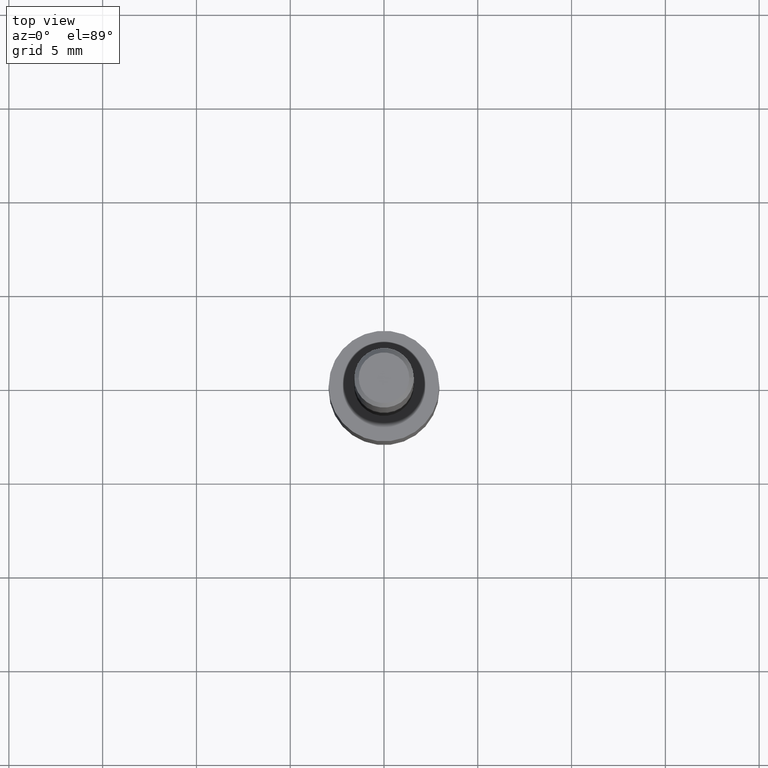
[diagram: clean part render]
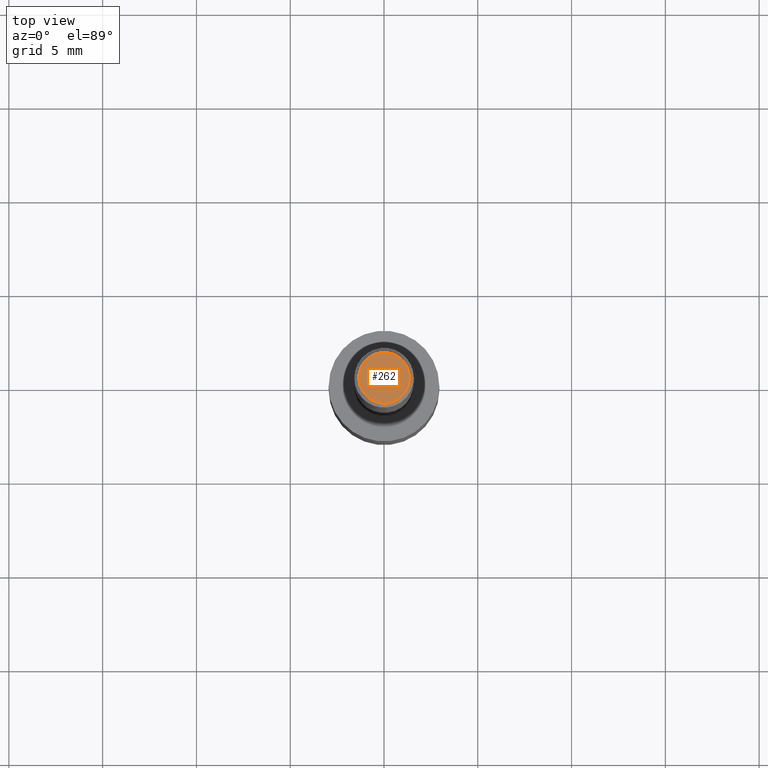
[diagram: same view with one face highlighted and labeled with its STEP entity id]
A machine part, top view. The second image highlights one B-rep face of the part: STEP entity #262.
In plain terms, the highlighted planar face has unit normal (0, -0, -1).
Its self-contained STEP definition (entity closure, byte-faithful):
#17 = ORIENTED_EDGE ( 'NONE', *, *, #114, .T. ) ;
#73 = CARTESIAN_POINT ( 'NONE',  ( -3.743544432386672853E-50, 5.344789307371238476E-36, 1.530808498934197599E-21 ) ) ;
#76 = VERTEX_POINT ( 'NONE', #91 ) ;
#82 = AXIS2_PLACEMENT_3D ( 'NONE', #236, #154, #231 ) ;
#91 = CARTESIAN_POINT ( 'NONE',  ( -0.05312499999999999861, 3.873362110279099094E-16, 3.061616995216862494E-21 ) ) ;
#114 = EDGE_CURVE ( 'NONE', #76, #338, #334, .T. ) ;
#116 = DIRECTION ( 'NONE',  ( 1.000000000000000000, -6.982962677686266711E-15, 4.876176628004948512E-29 ) ) ;
#125 = CIRCLE ( 'NONE', #82, 0.05312499999999999861 ) ;
#129 = DIRECTION ( 'NONE',  ( -1.000000000000000000, 6.982962677686265922E-15, -4.876176775795935793E-29 ) ) ;
#154 = DIRECTION ( 'NONE',  ( -2.445468806185136597E-29, 3.491481338843145583E-15, 1.000000000000000000 ) ) ;
#170 = AXIS2_PLACEMENT_3D ( 'NONE', #73, #289, #129 ) ;
#182 = ORIENTED_EDGE ( 'NONE', *, *, #317, .T. ) ;
#194 = DIRECTION ( 'NONE',  ( -2.445468806185136597E-29, 3.491481338843145583E-15, 1.000000000000000000 ) ) ;
#209 = CARTESIAN_POINT ( 'NONE',  ( 0.05312499999999999861, -4.129888592719939842E-16, 3.061617000609493422E-21 ) ) ;
#224 = AXIS2_PLACEMENT_3D ( 'NONE', #302, #194, #116 ) ;
#231 = DIRECTION ( 'NONE',  ( 1.000000000000000000, -6.982962677686266711E-15, 4.876176628004948512E-29 ) ) ;
#232 = FACE_OUTER_BOUND ( 'NONE', #261, .T. ) ;
#236 = CARTESIAN_POINT ( 'NONE',  ( -7.487088864773345706E-50, 1.068957861474247695E-35, 3.061616997868395197E-21 ) ) ;
#261 = EDGE_LOOP ( 'NONE', ( #17, #182 ) ) ;
#262 = ADVANCED_FACE ( 'NONE', ( #232 ), #268, .F. ) ;
#268 = PLANE ( 'NONE',  #170 ) ;
#289 = DIRECTION ( 'NONE',  ( 2.438088387897960049E-29, -3.491481338843145188E-15, -1.000000000000000000 ) ) ;
#302 = CARTESIAN_POINT ( 'NONE',  ( -7.487088864773345706E-50, 1.068957861474247695E-35, 3.061616997868395197E-21 ) ) ;
#317 = EDGE_CURVE ( 'NONE', #338, #76, #125, .T. ) ;
#334 = CIRCLE ( 'NONE', #224, 0.05312499999999999861 ) ;
#338 = VERTEX_POINT ( 'NONE', #209 ) ;